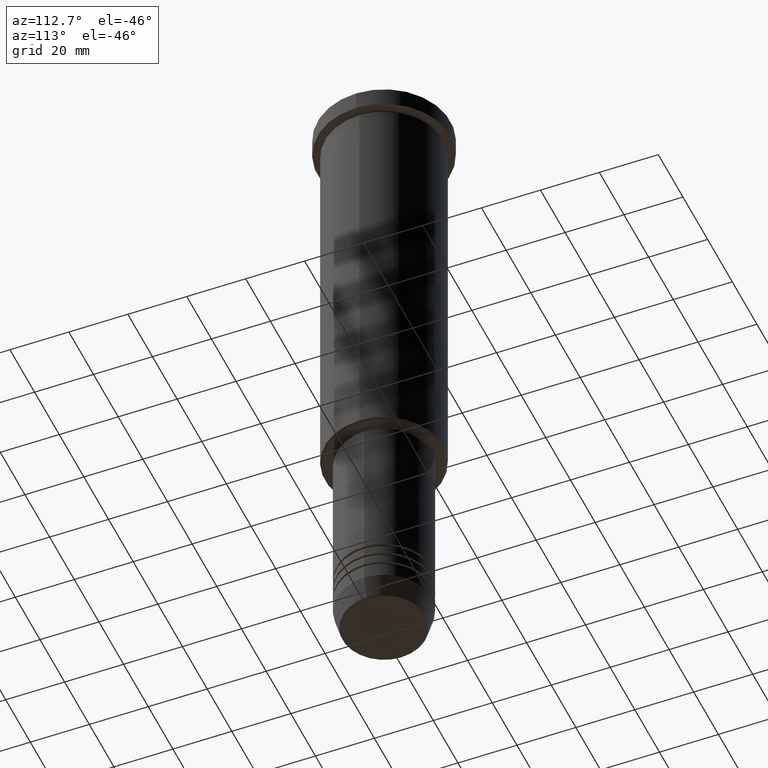
[diagram: clean part render]
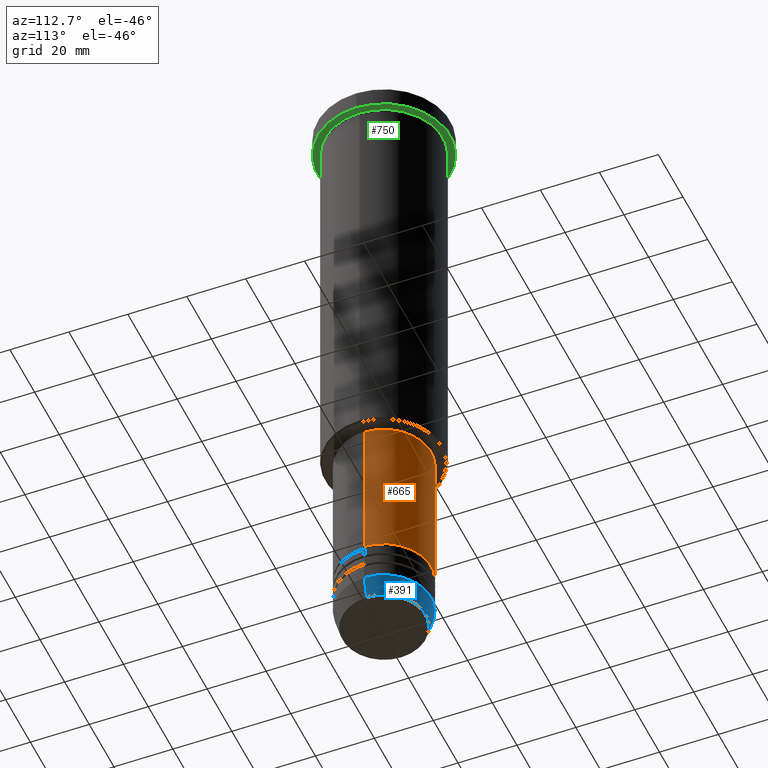
[diagram: same view with three faces highlighted in distinct colors, each labeled with its STEP entity id]
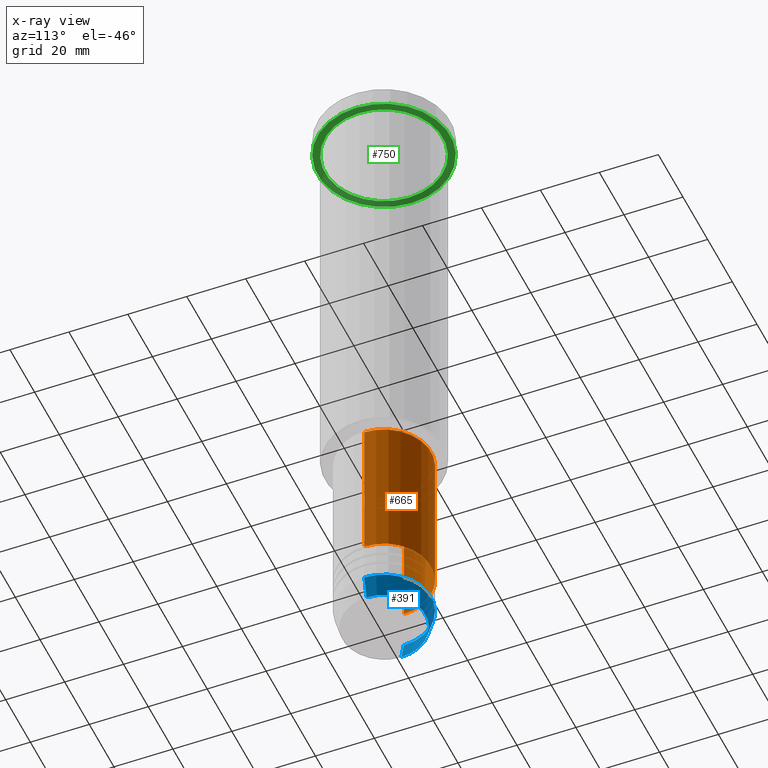
[diagram: x-ray of the same camera — body ghosted, the three highlighted faces saturated]
A machine part, auxiliary view with three faces highlighted in distinct colors.
The next image is the same camera in x-ray (body ghosted, the three faces saturated) — at least one of them is partly hidden behind the body in this view.
Their STEP definitions:

[orange] entity #665 — the highlighted cylindrical surface (partial cylindrical patch) has radius 16 mm, axis along (-0, -0, 1).
#89 = ORIENTED_EDGE ( 'NONE', *, *, #259, .F. ) ;
#124 = ORIENTED_EDGE ( 'NONE', *, *, #642, .F. ) ;
#161 = EDGE_LOOP ( 'NONE', ( #1149, #796, #89, #124 ) ) ;
#172 = AXIS2_PLACEMENT_3D ( 'NONE', #197, #743, #573 ) ;
#173 = EDGE_CURVE ( 'NONE', #656, #217, #762, .T. ) ;
#197 = CARTESIAN_POINT ( 'NONE',  ( 0.000000000000000000, 0.000000000000000000, -147.0000000000000000 ) ) ;
#212 = VERTEX_POINT ( 'NONE', #342 ) ;
#217 = VERTEX_POINT ( 'NONE', #576 ) ;
#224 = DIRECTION ( 'NONE',  ( 1.000000000000000000, 0.000000000000000000, 0.000000000000000000 ) ) ;
#240 = FACE_OUTER_BOUND ( 'NONE', #161, .T. ) ;
#259 = EDGE_CURVE ( 'NONE', #212, #217, #549, .T. ) ;
#315 = LINE ( 'NONE', #338, #795 ) ;
#322 = CARTESIAN_POINT ( 'NONE',  ( -16.00000000000000000, 1.959434878635765131E-15, -198.4999999999999716 ) ) ;
#338 = CARTESIAN_POINT ( 'NONE',  ( 16.00000000000000000, 0.000000000000000000, 0.000000000000000000 ) ) ;
#342 = CARTESIAN_POINT ( 'NONE',  ( 16.00000000000000000, 0.000000000000000000, -147.0000000000000000 ) ) ;
#397 = AXIS2_PLACEMENT_3D ( 'NONE', #714, #703, #224 ) ;
#423 = DIRECTION ( 'NONE',  ( 1.000000000000000000, 0.000000000000000000, 0.000000000000000000 ) ) ;
#506 = CYLINDRICAL_SURFACE ( 'NONE', #397, 16.00000000000000000 ) ;
#510 = DIRECTION ( 'NONE',  ( -0.000000000000000000, -0.000000000000000000, 1.000000000000000000 ) ) ;
#549 = CIRCLE ( 'NONE', #172, 16.00000000000000000 ) ;
#571 = CARTESIAN_POINT ( 'NONE',  ( 16.00000000000000000, 0.000000000000000000, -198.4999999999999716 ) ) ;
#573 = DIRECTION ( 'NONE',  ( 1.000000000000000000, 0.000000000000000000, 0.000000000000000000 ) ) ;
#576 = CARTESIAN_POINT ( 'NONE',  ( -16.00000000000000000, 1.959434878635765131E-15, -147.0000000000000000 ) ) ;
#630 = VECTOR ( 'NONE', #1036, 1000.000000000000000 ) ;
#631 = AXIS2_PLACEMENT_3D ( 'NONE', #936, #954, #423 ) ;
#642 = EDGE_CURVE ( 'NONE', #866, #212, #315, .T. ) ;
#656 = VERTEX_POINT ( 'NONE', #322 ) ;
#665 = ADVANCED_FACE ( 'NONE', ( #240 ), #506, .T. ) ;
#678 = EDGE_CURVE ( 'NONE', #866, #656, #812, .T. ) ;
#690 = CARTESIAN_POINT ( 'NONE',  ( -16.00000000000000000, 1.959434878635765131E-15, 0.000000000000000000 ) ) ;
#703 = DIRECTION ( 'NONE',  ( -0.000000000000000000, -0.000000000000000000, 1.000000000000000000 ) ) ;
#714 = CARTESIAN_POINT ( 'NONE',  ( 0.000000000000000000, 0.000000000000000000, 0.000000000000000000 ) ) ;
#743 = DIRECTION ( 'NONE',  ( -0.000000000000000000, -0.000000000000000000, 1.000000000000000000 ) ) ;
#762 = LINE ( 'NONE', #690, #630 ) ;
#795 = VECTOR ( 'NONE', #510, 1000.000000000000000 ) ;
#796 = ORIENTED_EDGE ( 'NONE', *, *, #173, .T. ) ;
#812 = CIRCLE ( 'NONE', #631, 16.00000000000000000 ) ;
#866 = VERTEX_POINT ( 'NONE', #571 ) ;
#936 = CARTESIAN_POINT ( 'NONE',  ( 0.000000000000000000, 0.000000000000000000, -198.4999999999999716 ) ) ;
#954 = DIRECTION ( 'NONE',  ( -0.000000000000000000, -0.000000000000000000, 1.000000000000000000 ) ) ;
#1036 = DIRECTION ( 'NONE',  ( -0.000000000000000000, -0.000000000000000000, 1.000000000000000000 ) ) ;
#1149 = ORIENTED_EDGE ( 'NONE', *, *, #678, .T. ) ;

[blue] entity #391 — the highlighted conical surface has half-angle 15 deg.
#29 = DIRECTION ( 'NONE',  ( -0.000000000000000000, -0.000000000000000000, 1.000000000000000000 ) ) ;
#54 = VERTEX_POINT ( 'NONE', #975 ) ;
#87 = CARTESIAN_POINT ( 'NONE',  ( 0.000000000000000000, 0.000000000000000000, -212.5000000000000000 ) ) ;
#142 = CARTESIAN_POINT ( 'NONE',  ( 0.000000000000000000, 0.000000000000000000, -219.6294095225512137 ) ) ;
#198 = CARTESIAN_POINT ( 'NONE',  ( 0.000000000000000000, 0.000000000000000000, -212.5000000000000000 ) ) ;
#219 = CONICAL_SURFACE ( 'NONE', #433, 16.00000000000000000, 0.2617993877991500740 ) ;
#258 = EDGE_CURVE ( 'NONE', #376, #54, #771, .T. ) ;
#261 = ORIENTED_EDGE ( 'NONE', *, *, #323, .T. ) ;
#272 = ORIENTED_EDGE ( 'NONE', *, *, #258, .F. ) ;
#323 = EDGE_CURVE ( 'NONE', #376, #1115, #1143, .T. ) ;
#345 = VECTOR ( 'NONE', #365, 1000.000000000000000 ) ;
#365 = DIRECTION ( 'NONE',  ( 0.2588190451025213501, 0.000000000000000000, 0.9659258262890680902 ) ) ;
#374 = CIRCLE ( 'NONE', #1028, 16.00000000000000000 ) ;
#376 = VERTEX_POINT ( 'NONE', #402 ) ;
#391 = ADVANCED_FACE ( 'NONE', ( #937 ), #219, .T. ) ;
#402 = CARTESIAN_POINT ( 'NONE',  ( 14.08968047592163941, 0.000000000000000000, -219.6294095225512137 ) ) ;
#412 = CARTESIAN_POINT ( 'NONE',  ( -14.08968047592163941, 1.842461544110202058E-15, -219.6294095225512137 ) ) ;
#413 = EDGE_CURVE ( 'NONE', #54, #624, #374, .T. ) ;
#425 = DIRECTION ( 'NONE',  ( -0.000000000000000000, -0.000000000000000000, 1.000000000000000000 ) ) ;
#433 = AXIS2_PLACEMENT_3D ( 'NONE', #87, #657, #1009 ) ;
#501 = LINE ( 'NONE', #849, #987 ) ;
#574 = DIRECTION ( 'NONE',  ( 1.000000000000000000, 0.000000000000000000, 0.000000000000000000 ) ) ;
#624 = VERTEX_POINT ( 'NONE', #1155 ) ;
#657 = DIRECTION ( 'NONE',  ( -0.000000000000000000, -0.000000000000000000, 1.000000000000000000 ) ) ;
#740 = AXIS2_PLACEMENT_3D ( 'NONE', #142, #425, #1129 ) ;
#741 = DIRECTION ( 'NONE',  ( -0.2588190451025213501, 3.169619151431772337E-17, 0.9659258262890680902 ) ) ;
#745 = EDGE_LOOP ( 'NONE', ( #261, #1055, #1180, #272 ) ) ;
#771 = LINE ( 'NONE', #1025, #345 ) ;
#849 = CARTESIAN_POINT ( 'NONE',  ( -16.00000000000000000, 1.959434878635765131E-15, -212.5000000000000000 ) ) ;
#937 = FACE_OUTER_BOUND ( 'NONE', #745, .T. ) ;
#940 = EDGE_CURVE ( 'NONE', #1115, #624, #501, .T. ) ;
#975 = CARTESIAN_POINT ( 'NONE',  ( 16.00000000000000000, 0.000000000000000000, -212.5000000000000000 ) ) ;
#987 = VECTOR ( 'NONE', #741, 1000.000000000000000 ) ;
#1009 = DIRECTION ( 'NONE',  ( 1.000000000000000000, 0.000000000000000000, 0.000000000000000000 ) ) ;
#1025 = CARTESIAN_POINT ( 'NONE',  ( 16.00000000000000000, 0.000000000000000000, -212.5000000000000000 ) ) ;
#1028 = AXIS2_PLACEMENT_3D ( 'NONE', #198, #29, #574 ) ;
#1055 = ORIENTED_EDGE ( 'NONE', *, *, #940, .T. ) ;
#1115 = VERTEX_POINT ( 'NONE', #412 ) ;
#1129 = DIRECTION ( 'NONE',  ( 1.000000000000000000, 0.000000000000000000, 0.000000000000000000 ) ) ;
#1143 = CIRCLE ( 'NONE', #740, 14.08968047592163941 ) ;
#1155 = CARTESIAN_POINT ( 'NONE',  ( -16.00000000000000000, 1.959434878635765131E-15, -212.5000000000000000 ) ) ;
#1180 = ORIENTED_EDGE ( 'NONE', *, *, #413, .F. ) ;

[green] entity #750 — the highlighted planar face has unit normal (0, 0, -1).
#5 = CIRCLE ( 'NONE', #154, 20.00000000000000000 ) ;
#12 = CARTESIAN_POINT ( 'NONE',  ( -20.00000000000000000, 0.000000000000000000, -6.999999999999995559 ) ) ;
#62 = AXIS2_PLACEMENT_3D ( 'NONE', #489, #1103, #843 ) ;
#63 = AXIS2_PLACEMENT_3D ( 'NONE', #1038, #232, #1142 ) ;
#64 = CIRCLE ( 'NONE', #932, 20.00000000000000000 ) ;
#82 = VERTEX_POINT ( 'NONE', #666 ) ;
#126 = EDGE_LOOP ( 'NONE', ( #1176, #140 ) ) ;
#140 = ORIENTED_EDGE ( 'NONE', *, *, #429, .T. ) ;
#153 = PLANE ( 'NONE',  #264 ) ;
#154 = AXIS2_PLACEMENT_3D ( 'NONE', #395, #760, #404 ) ;
#191 = ORIENTED_EDGE ( 'NONE', *, *, #554, .F. ) ;
#209 = CARTESIAN_POINT ( 'NONE',  ( 22.50000000000000000, 0.000000000000000000, -6.999999999999995559 ) ) ;
#228 = EDGE_LOOP ( 'NONE', ( #454, #191 ) ) ;
#232 = DIRECTION ( 'NONE',  ( -0.000000000000000000, -0.000000000000000000, 1.000000000000000000 ) ) ;
#239 = VERTEX_POINT ( 'NONE', #334 ) ;
#257 = FACE_OUTER_BOUND ( 'NONE', #228, .T. ) ;
#264 = AXIS2_PLACEMENT_3D ( 'NONE', #370, #277, #731 ) ;
#277 = DIRECTION ( 'NONE',  ( 0.000000000000000000, 0.000000000000000000, -1.000000000000000000 ) ) ;
#334 = CARTESIAN_POINT ( 'NONE',  ( -22.50000000000000000, 2.755455298081544778E-15, -6.999999999999995559 ) ) ;
#370 = CARTESIAN_POINT ( 'NONE',  ( 0.000000000000000000, 22.50000000000000000, -6.999999999999995559 ) ) ;
#395 = CARTESIAN_POINT ( 'NONE',  ( 0.000000000000000000, 0.000000000000000000, -6.999999999999995559 ) ) ;
#400 = EDGE_CURVE ( 'NONE', #824, #239, #929, .T. ) ;
#404 = DIRECTION ( 'NONE',  ( -1.000000000000000000, 0.000000000000000000, 0.000000000000000000 ) ) ;
#429 = EDGE_CURVE ( 'NONE', #82, #547, #5, .T. ) ;
#454 = ORIENTED_EDGE ( 'NONE', *, *, #400, .F. ) ;
#489 = CARTESIAN_POINT ( 'NONE',  ( 0.000000000000000000, 0.000000000000000000, -6.999999999999995559 ) ) ;
#545 = FACE_BOUND ( 'NONE', #126, .T. ) ;
#547 = VERTEX_POINT ( 'NONE', #12 ) ;
#554 = EDGE_CURVE ( 'NONE', #239, #824, #783, .T. ) ;
#618 = DIRECTION ( 'NONE',  ( -1.000000000000000000, 0.000000000000000000, 0.000000000000000000 ) ) ;
#666 = CARTESIAN_POINT ( 'NONE',  ( 20.00000000000000000, 2.449293598294706513E-15, -6.999999999999995559 ) ) ;
#683 = DIRECTION ( 'NONE',  ( -0.000000000000000000, -0.000000000000000000, 1.000000000000000000 ) ) ;
#731 = DIRECTION ( 'NONE',  ( -1.000000000000000000, 0.000000000000000000, -0.000000000000000000 ) ) ;
#750 = ADVANCED_FACE ( 'NONE', ( #545, #257 ), #153, .T. ) ;
#760 = DIRECTION ( 'NONE',  ( -0.000000000000000000, -0.000000000000000000, 1.000000000000000000 ) ) ;
#783 = CIRCLE ( 'NONE', #63, 22.50000000000000000 ) ;
#824 = VERTEX_POINT ( 'NONE', #209 ) ;
#843 = DIRECTION ( 'NONE',  ( 1.000000000000000000, 0.000000000000000000, 0.000000000000000000 ) ) ;
#929 = CIRCLE ( 'NONE', #62, 22.50000000000000000 ) ;
#932 = AXIS2_PLACEMENT_3D ( 'NONE', #945, #683, #618 ) ;
#945 = CARTESIAN_POINT ( 'NONE',  ( 0.000000000000000000, 0.000000000000000000, -6.999999999999995559 ) ) ;
#953 = EDGE_CURVE ( 'NONE', #547, #82, #64, .T. ) ;
#1038 = CARTESIAN_POINT ( 'NONE',  ( 0.000000000000000000, 0.000000000000000000, -6.999999999999995559 ) ) ;
#1103 = DIRECTION ( 'NONE',  ( -0.000000000000000000, -0.000000000000000000, 1.000000000000000000 ) ) ;
#1142 = DIRECTION ( 'NONE',  ( 1.000000000000000000, 0.000000000000000000, 0.000000000000000000 ) ) ;
#1176 = ORIENTED_EDGE ( 'NONE', *, *, #953, .T. ) ;